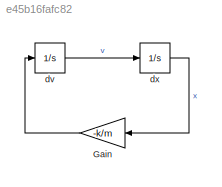
MODEL slx_e45b16fafc82
KIND model
CONFIG AbsTol = auto
CONFIG EnableMultiTasking = off
CONFIG FixedStep = auto
CONFIG MaxStep = auto
CONFIG MinStep = auto
CONFIG RelTol = 1e-3
CONFIG SampleTimeConstraint = Unconstrained
CONFIG SolverName = VariableStepAuto
CONFIG StartTime = 0.0
CONFIG StopTime = 10.0
BLOCK [Gain] Gain
  Gain = -k/m
  NameLocation = top
BLOCK [Integrator] dv
  InitialCondition = v0
BLOCK [Integrator] dx
  InitialCondition = x0
LINE Gain:1 -> dv:1
LINE dv:1 -> dx:1
LINE dx:1 -> Gain:1
